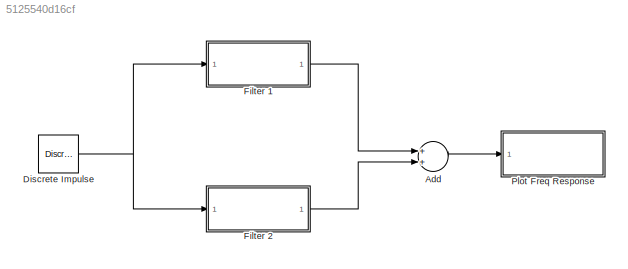
MODEL slx_5125540d16cf
KIND model
CONFIG AbsTol = auto
CONFIG EnableMultiTasking = off
CONFIG FixedStep = auto
CONFIG MaxStep = auto
CONFIG MinStep = auto
CONFIG RelTol = 1e-3
CONFIG SampleTimeConstraint = Unconstrained
CONFIG Solver = VariableStepAuto
CONFIG SolverName = VariableStepAuto
CONFIG StartTime = 0.0
CONFIG StopTime = 0.001
BLOCK [Sum] Add
  InputSameDT = off
  OutDataTypeStr = Inherit: Inherit via internal rule
  Ports = [2, 1]
  SaturateOnIntegerOverflow = off
BLOCK [Reference] Discrete Impulse  REF=dspsrcs4/Discrete 
Impulse
  Ports = [0, 1]
  SourceBlock = dspsrcs4/Discrete \nImpulse
  SourceProductBaseCode = DS
  SourceProductName = DSP System Toolbox
  SourceType = Discrete Impulse
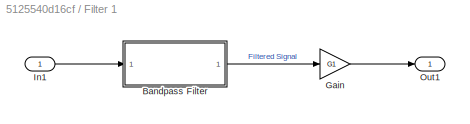
BLOCK [SubSystem] Filter 1
  Ports = [1, 1]
  RequestExecContextInheritance = off
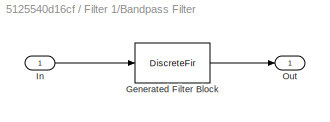
BLOCK [SubSystem] Filter 1/Bandpass Filter
  CopyFcn = fdesignblkfcn(gcbh, {'CopyFcn'});
  DialogController = fdesignblkfcn
  InitFcn = fdesignblkfcn(gcbh, {'InitFcn'});
  Ports = [1, 1]
  RequestExecContextInheritance = off
  UserDataPersistent = on
BLOCK [DiscreteFir] Filter 1/Bandpass Filter/Generated Filter Block
  Coefficients = [0.00263153159801553802 -0.000925904745237847958 -0.000752953473169977374 0.00300964181423011038 0.00946193180662700632 0.013265239771152652 0.0101016095527189133 0.00224346218802161683 -0.00313551560182016853 -0.00182553027462669759 0.00278714946480265735 0.00425556872385676223 0.00115409424020770121 -0.0016826234776469765 -0.000143014286550564862 0.00343941682014496392 0.0037412759983621478 9.13...<+3377ch>
  InputPortMap = u0
  InputProcessing = Columns as channels (frame based)
  OutputPortMap = o0
  Ports = [1, 1]
  Tag = BlockMethodSubSystem
BLOCK [Inport] Filter 1/Bandpass Filter/In
  IconDisplay = Port number
BLOCK [Outport] Filter 1/Bandpass Filter/Out
  IconDisplay = Port number
BLOCK [Gain] Filter 1/Gain
  Gain = G1
  OutDataTypeStr = Inherit: Inherit via internal rule
  ParamDataTypeStr = Inherit: Inherit via internal rule
  SaturateOnIntegerOverflow = off
BLOCK [Inport] Filter 1/In1
  IconDisplay = Port number
BLOCK [Outport] Filter 1/Out1
  IconDisplay = Port number
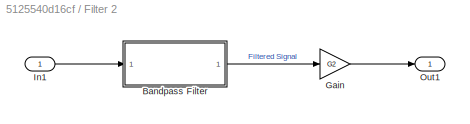
BLOCK [SubSystem] Filter 2
  Ports = [1, 1]
  RequestExecContextInheritance = off
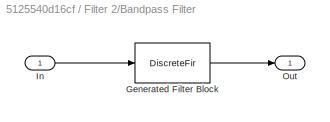
BLOCK [SubSystem] Filter 2/Bandpass Filter
  CopyFcn = fdesignblkfcn(gcbh, {'CopyFcn'});
  DialogController = fdesignblkfcn
  InitFcn = fdesignblkfcn(gcbh, {'InitFcn'});
  Ports = [1, 1]
  RequestExecContextInheritance = off
  UserDataPersistent = on
BLOCK [DiscreteFir] Filter 2/Bandpass Filter/Generated Filter Block
  Coefficients = [-0.00277583134256976886 0.01479724496396124 -0.0122372115988817719 -0.00179948060774227925 0.00467653679756307658 0.00553023427845650631 -0.00588174934326072749 -0.000979437037093786045 -0.00106255053392637078 0.00240347552664520181 0.0043241814452752228 -0.00467116539590085519 -0.000321320529674491706 -0.00189650625160915978 0.00225558032553131727 0.00455563441113918804 -0.00426383384311687652 -...<+3295ch>
  InputPortMap = u0
  InputProcessing = Columns as channels (frame based)
  OutputPortMap = o0
  Ports = [1, 1]
  Tag = BlockMethodSubSystem
BLOCK [Inport] Filter 2/Bandpass Filter/In
  IconDisplay = Port number
BLOCK [Outport] Filter 2/Bandpass Filter/Out
  IconDisplay = Port number
BLOCK [Gain] Filter 2/Gain
  Gain = G2
  OutDataTypeStr = Inherit: Inherit via internal rule
  ParamDataTypeStr = Inherit: Inherit via internal rule
  SaturateOnIntegerOverflow = off
BLOCK [Inport] Filter 2/In1
  IconDisplay = Port number
BLOCK [Outport] Filter 2/Out1
  IconDisplay = Port number
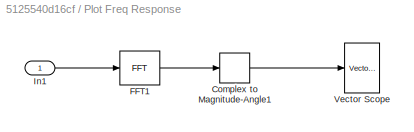
BLOCK [SubSystem] Plot Freq Response
  Ports = [1]
  RequestExecContextInheritance = off
BLOCK [ComplexToMagnitudeAngle] Plot Freq Response/Complex to Magnitude-Angle1
  Output = Magnitude
  Ports = [1, 1]
BLOCK [Reference] Plot Freq Response/FFT1  REF=dspxfrm3/FFT
  Ports = [1, 1]
  SourceBlock = dspxfrm3/FFT
  SourceProductBaseCode = DS
  SourceProductName = DSP System Toolbox
  SourceType = FFT
BLOCK [Inport] Plot Freq Response/In1
  IconDisplay = Port number
BLOCK [Reference] Plot Freq Response/Vector Scope  REF=dspobslib/Vector
Scope
  Ports = [1]
  SourceBlock = dspobslib/Vector\nScope
  SourceProductBaseCode = DS
  SourceProductName = DSP System Toolbox
  SourceType = Vector Scope
LINE Add:1 -> Plot Freq Response:1
NET Discrete Impulse:1 -> Filter 1:1, Filter 2:1
LINE Filter 1/Bandpass Filter:1 -> Filter 1/Gain:1
LINE Filter 1/Gain:1 -> Filter 1/Out1:1
LINE Filter 1/In1:1 -> Filter 1/Bandpass Filter:1
LINE Filter 1:1 -> Add:1
LINE Filter 2/Bandpass Filter:1 -> Filter 2/Gain:1
LINE Filter 2/Gain:1 -> Filter 2/Out1:1
LINE Filter 2/In1:1 -> Filter 2/Bandpass Filter:1
LINE Filter 2:1 -> Add:2
LINE Plot Freq Response/Complex to Magnitude-Angle1:1 -> Plot Freq Response/Vector Scope:1
LINE Plot Freq Response/FFT1:1 -> Plot Freq Response/Complex to Magnitude-Angle1:1
LINE Plot Freq Response/In1:1 -> Plot Freq Response/FFT1:1
note: NET lines group one-source signal fan-out (src -> all destinations, sorted); 1:1 wires keep LINE
